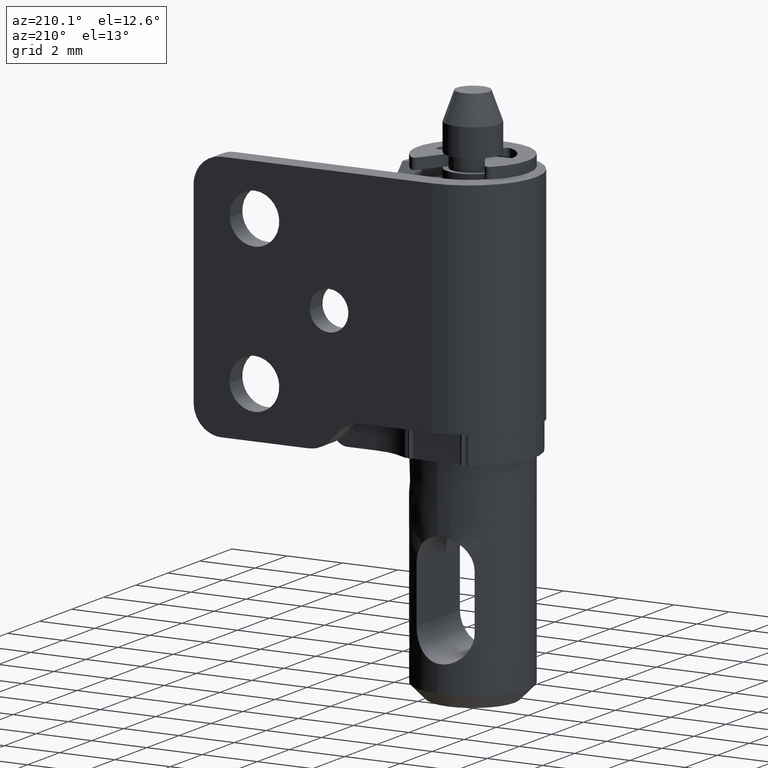
[diagram: clean part render]
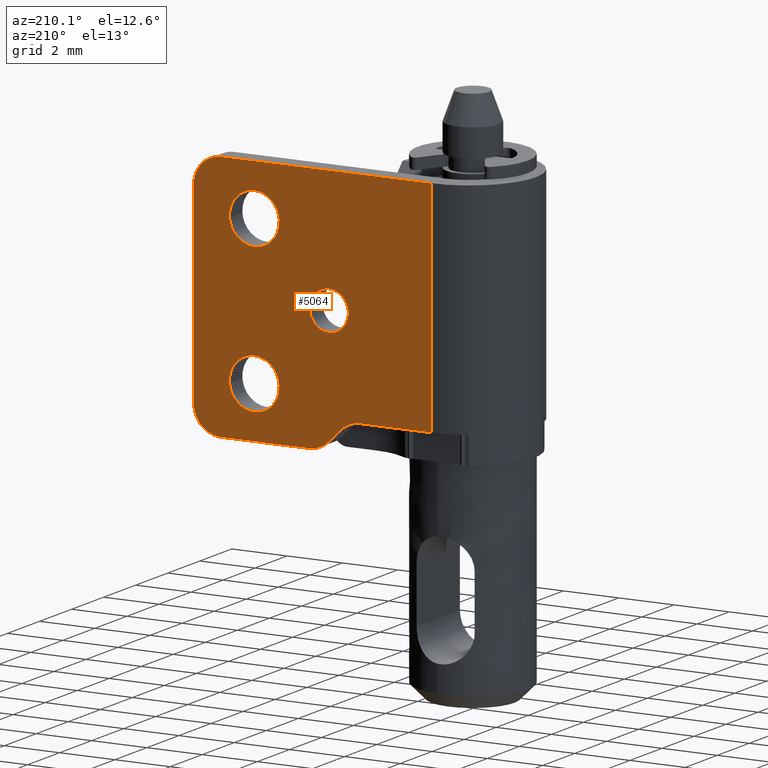
[diagram: same view with one face highlighted and labeled with its STEP entity id]
A machine part, auxiliary view. The second image highlights one B-rep face of the part: STEP entity #5064.
In plain terms, the highlighted face is a freeform B-spline surface patch.
Its self-contained STEP definition (entity closure, byte-faithful):
#3770=CARTESIAN_POINT('',(3.002157866387539,2.600000000000045,12.554921367018940));
#3771=VERTEX_POINT('',#3770);
#3777=CARTESIAN_POINT('',(3.699999999999945,2.600000000000045,13.199999999999500));
#3778=VERTEX_POINT('',#3777);
#3779=CARTESIAN_POINT('',(3.699999999999945,2.600000000000045,13.199999999999500));
#3780=CARTESIAN_POINT('',(3.052926655848458,2.600000000000046,13.199999999999498));
#3781=CARTESIAN_POINT('',(3.002157866387539,2.600000000000045,12.554921367018947));
#3789=(BOUNDED_CURVE()B_SPLINE_CURVE(2,(#3779,#3780,#3781),.UNSPECIFIED.,.F.,.U.)B_SPLINE_CURVE_WITH_KNOTS((3,3),(0.0,0.236331300630322),.UNSPECIFIED.)CURVE()GEOMETRIC_REPRESENTATION_ITEM()RATIONAL_B_SPLINE_CURVE((1.0,0.723120658608061,0.969723356166713))REPRESENTATION_ITEM(''));
#3790=EDGE_CURVE('',#3778,#3771,#3789,.T.);
#3792=CARTESIAN_POINT('',(4.397842133612350,2.600000000000045,12.445078632980049));
#3793=VERTEX_POINT('',#3792);
#3794=CARTESIAN_POINT('',(4.397842133612352,2.600000000000045,12.445078632980056));
#3795=CARTESIAN_POINT('',(4.399999999999944,2.600000000000045,12.472496925089127));
#3796=CARTESIAN_POINT('',(4.399999999999944,2.600000000000045,12.499999999999501));
#3797=CARTESIAN_POINT('',(4.399999999999945,2.600000000000045,13.199999999999498));
#3798=CARTESIAN_POINT('',(3.699999999999945,2.600000000000045,13.199999999999500));
#3806=(BOUNDED_CURVE()B_SPLINE_CURVE(2,(#3794,#3795,#3796,#3797,#3798),.UNSPECIFIED.,.F.,.U.)B_SPLINE_CURVE_WITH_KNOTS((3,2,3),(0.736331300630322,0.750000000000000,1.0),.UNSPECIFIED.)CURVE()GEOMETRIC_REPRESENTATION_ITEM()RATIONAL_B_SPLINE_CURVE((0.969723356166712,0.983986122578486,1.0,0.707106781186547,1.0))REPRESENTATION_ITEM(''));
#3807=EDGE_CURVE('',#3793,#3778,#3806,.T.);
#3883=CARTESIAN_POINT('',(3.699999999999945,2.600000000000045,11.799999999999500));
#3884=VERTEX_POINT('',#3883);
#3885=CARTESIAN_POINT('',(3.699999999999945,2.600000000000045,11.799999999999500));
#3886=CARTESIAN_POINT('',(4.347073344151431,2.600000000000044,11.799999999999502));
#3887=CARTESIAN_POINT('',(4.397842133612352,2.600000000000045,12.445078632980056));
#3895=(BOUNDED_CURVE()B_SPLINE_CURVE(2,(#3885,#3886,#3887),.UNSPECIFIED.,.F.,.U.)B_SPLINE_CURVE_WITH_KNOTS((3,3),(0.500000000000000,0.736331300630322),.UNSPECIFIED.)CURVE()GEOMETRIC_REPRESENTATION_ITEM()RATIONAL_B_SPLINE_CURVE((1.0,0.723120658608062,0.969723356166712))REPRESENTATION_ITEM(''));
#3896=EDGE_CURVE('',#3884,#3793,#3895,.T.);
#3898=CARTESIAN_POINT('',(3.002157866387540,2.600000000000045,12.554921367018949));
#3899=CARTESIAN_POINT('',(2.999999999999945,2.600000000000044,12.527503074909864));
#3900=CARTESIAN_POINT('',(2.999999999999945,2.600000000000045,12.499999999999501));
#3901=CARTESIAN_POINT('',(2.999999999999944,2.600000000000045,11.799999999999500));
#3902=CARTESIAN_POINT('',(3.699999999999945,2.600000000000045,11.799999999999500));
#3910=(BOUNDED_CURVE()B_SPLINE_CURVE(2,(#3898,#3899,#3900,#3901,#3902),.UNSPECIFIED.,.F.,.U.)B_SPLINE_CURVE_WITH_KNOTS((3,2,3),(0.236331300630322,0.250000000000000,0.500000000000000),.UNSPECIFIED.)CURVE()GEOMETRIC_REPRESENTATION_ITEM()RATIONAL_B_SPLINE_CURVE((0.969723356166713,0.983986122578486,1.0,0.707106781186547,1.0))REPRESENTATION_ITEM(''));
#3911=EDGE_CURVE('',#3771,#3884,#3910,.T.);
#3952=CARTESIAN_POINT('',(5.502774399642845,2.600000000000045,15.220613186188350));
#3953=VERTEX_POINT('',#3952);
#3959=CARTESIAN_POINT('',(6.400000000000000,2.600000000000045,16.049999999999500));
#3960=VERTEX_POINT('',#3959);
#3961=CARTESIAN_POINT('',(6.400000000000000,2.600000000000045,16.049999999999500));
#3962=CARTESIAN_POINT('',(5.568048557539039,2.600000000000046,16.049999999999496));
#3963=CARTESIAN_POINT('',(5.502774399642846,2.600000000000046,15.220613186188341));
#3971=(BOUNDED_CURVE()B_SPLINE_CURVE(2,(#3961,#3962,#3963),.UNSPECIFIED.,.F.,.U.)B_SPLINE_CURVE_WITH_KNOTS((3,3),(0.0,0.236331300626312),.UNSPECIFIED.)CURVE()GEOMETRIC_REPRESENTATION_ITEM()RATIONAL_B_SPLINE_CURVE((1.0,0.723120658612759,0.969723356158344))REPRESENTATION_ITEM(''));
#3972=EDGE_CURVE('',#3960,#3953,#3971,.T.);
#3974=CARTESIAN_POINT('',(7.297225600357156,2.600000000000045,15.079386813810650));
#3975=VERTEX_POINT('',#3974);
#3976=CARTESIAN_POINT('',(7.297225600357154,2.600000000000045,15.079386813810649));
#3977=CARTESIAN_POINT('',(7.299999999999999,2.600000000000045,15.114638903675626));
#3978=CARTESIAN_POINT('',(7.300000000000000,2.600000000000045,15.149999999999499));
#3979=CARTESIAN_POINT('',(7.299999999999999,2.600000000000045,16.049999999999496));
#3980=CARTESIAN_POINT('',(6.400000000000000,2.600000000000045,16.049999999999500));
#3988=(BOUNDED_CURVE()B_SPLINE_CURVE(2,(#3976,#3977,#3978,#3979,#3980),.UNSPECIFIED.,.F.,.U.)B_SPLINE_CURVE_WITH_KNOTS((3,2,3),(0.736331300626312,0.750000000000000,1.0),.UNSPECIFIED.)CURVE()GEOMETRIC_REPRESENTATION_ITEM()RATIONAL_B_SPLINE_CURVE((0.969723356158344,0.983986122573788,1.0,0.707106781186547,1.0))REPRESENTATION_ITEM(''));
#3989=EDGE_CURVE('',#3975,#3960,#3988,.T.);
#4065=CARTESIAN_POINT('',(6.400000000000000,2.600000000000045,14.249999999999501));
#4066=VERTEX_POINT('',#4065);
#4067=CARTESIAN_POINT('',(6.400000000000000,2.600000000000045,14.249999999999501));
#4068=CARTESIAN_POINT('',(7.231951442460961,2.600000000000045,14.249999999999499));
#4069=CARTESIAN_POINT('',(7.297225600357154,2.600000000000045,15.079386813810649));
#4077=(BOUNDED_CURVE()B_SPLINE_CURVE(2,(#4067,#4068,#4069),.UNSPECIFIED.,.F.,.U.)B_SPLINE_CURVE_WITH_KNOTS((3,3),(0.500000000000000,0.736331300626312),.UNSPECIFIED.)CURVE()GEOMETRIC_REPRESENTATION_ITEM()RATIONAL_B_SPLINE_CURVE((1.0,0.723120658612759,0.969723356158344))REPRESENTATION_ITEM(''));
#4078=EDGE_CURVE('',#4066,#3975,#4077,.T.);
#4080=CARTESIAN_POINT('',(5.502774399642846,2.600000000000045,15.220613186188347));
#4081=CARTESIAN_POINT('',(5.500000000000001,2.600000000000045,15.185361096323369));
#4082=CARTESIAN_POINT('',(5.500000000000001,2.600000000000045,15.149999999999499));
#4083=CARTESIAN_POINT('',(5.500000000000002,2.600000000000045,14.249999999999503));
#4084=CARTESIAN_POINT('',(6.400000000000000,2.600000000000045,14.249999999999501));
#4092=(BOUNDED_CURVE()B_SPLINE_CURVE(2,(#4080,#4081,#4082,#4083,#4084),.UNSPECIFIED.,.F.,.U.)B_SPLINE_CURVE_WITH_KNOTS((3,2,3),(0.236331300626312,0.250000000000000,0.500000000000000),.UNSPECIFIED.)CURVE()GEOMETRIC_REPRESENTATION_ITEM()RATIONAL_B_SPLINE_CURVE((0.969723356158344,0.983986122573788,1.0,0.707106781186547,1.0))REPRESENTATION_ITEM(''));
#4093=EDGE_CURVE('',#3953,#4066,#4092,.T.);
#4134=CARTESIAN_POINT('',(5.502774399642845,2.600000000000045,9.920613186188376));
#4135=VERTEX_POINT('',#4134);
#4141=CARTESIAN_POINT('',(6.400000000000000,2.600000000000045,10.749999999999529));
#4142=VERTEX_POINT('',#4141);
#4143=CARTESIAN_POINT('',(6.400000000000000,2.600000000000045,10.749999999999529));
#4144=CARTESIAN_POINT('',(5.568048557539038,2.600000000000045,10.749999999999531));
#4145=CARTESIAN_POINT('',(5.502774399642846,2.600000000000045,9.920613186188376));
#4153=(BOUNDED_CURVE()B_SPLINE_CURVE(2,(#4143,#4144,#4145),.UNSPECIFIED.,.F.,.U.)B_SPLINE_CURVE_WITH_KNOTS((3,3),(0.0,0.236331300626312),.UNSPECIFIED.)CURVE()GEOMETRIC_REPRESENTATION_ITEM()RATIONAL_B_SPLINE_CURVE((1.0,0.723120658612759,0.969723356158344))REPRESENTATION_ITEM(''));
#4154=EDGE_CURVE('',#4142,#4135,#4153,.T.);
#4156=CARTESIAN_POINT('',(7.297225600357155,2.600000000000045,9.779386813810685));
#4157=VERTEX_POINT('',#4156);
#4158=CARTESIAN_POINT('',(7.297225600357156,2.600000000000045,9.779386813810685));
#4159=CARTESIAN_POINT('',(7.300000000000001,2.600000000000045,9.814638903675657));
#4160=CARTESIAN_POINT('',(7.300000000000000,2.600000000000045,9.849999999999531));
#4161=CARTESIAN_POINT('',(7.299999999999999,2.600000000000045,10.749999999999531));
#4162=CARTESIAN_POINT('',(6.400000000000000,2.600000000000045,10.749999999999529));
#4170=(BOUNDED_CURVE()B_SPLINE_CURVE(2,(#4158,#4159,#4160,#4161,#4162),.UNSPECIFIED.,.F.,.U.)B_SPLINE_CURVE_WITH_KNOTS((3,2,3),(0.736331300626312,0.750000000000000,1.0),.UNSPECIFIED.)CURVE()GEOMETRIC_REPRESENTATION_ITEM()RATIONAL_B_SPLINE_CURVE((0.969723356158345,0.983986122573789,1.0,0.707106781186547,1.0))REPRESENTATION_ITEM(''));
#4171=EDGE_CURVE('',#4157,#4142,#4170,.T.);
#4247=CARTESIAN_POINT('',(6.400000000000000,2.600000000000045,8.949999999999532));
#4248=VERTEX_POINT('',#4247);
#4249=CARTESIAN_POINT('',(6.400000000000000,2.600000000000045,8.949999999999532));
#4250=CARTESIAN_POINT('',(7.231951442460961,2.600000000000045,8.949999999999532));
#4251=CARTESIAN_POINT('',(7.297225600357154,2.600000000000045,9.779386813810685));
#4259=(BOUNDED_CURVE()B_SPLINE_CURVE(2,(#4249,#4250,#4251),.UNSPECIFIED.,.F.,.U.)B_SPLINE_CURVE_WITH_KNOTS((3,3),(0.500000000000000,0.736331300626312),.UNSPECIFIED.)CURVE()GEOMETRIC_REPRESENTATION_ITEM()RATIONAL_B_SPLINE_CURVE((1.0,0.723120658612759,0.969723356158344))REPRESENTATION_ITEM(''));
#4260=EDGE_CURVE('',#4248,#4157,#4259,.T.);
#4262=CARTESIAN_POINT('',(5.502774399642846,2.600000000000045,9.920613186188376));
#4263=CARTESIAN_POINT('',(5.500000000000001,2.600000000000045,9.885361096323404));
#4264=CARTESIAN_POINT('',(5.500000000000001,2.600000000000045,9.849999999999531));
#4265=CARTESIAN_POINT('',(5.500000000000002,2.600000000000045,8.949999999999532));
#4266=CARTESIAN_POINT('',(6.400000000000000,2.600000000000045,8.949999999999532));
#4274=(BOUNDED_CURVE()B_SPLINE_CURVE(2,(#4262,#4263,#4264,#4265,#4266),.UNSPECIFIED.,.F.,.U.)B_SPLINE_CURVE_WITH_KNOTS((3,2,3),(0.236331300626312,0.250000000000000,0.500000000000000),.UNSPECIFIED.)CURVE()GEOMETRIC_REPRESENTATION_ITEM()RATIONAL_B_SPLINE_CURVE((0.969723356158344,0.983986122573788,1.0,0.707106781186547,1.0))REPRESENTATION_ITEM(''));
#4275=EDGE_CURVE('',#4135,#4248,#4274,.T.);
#4635=CARTESIAN_POINT('',(7.599999999999910,2.600000000000000,17.0));
#4636=VERTEX_POINT('',#4635);
#4637=CARTESIAN_POINT('',(8.600000000000000,2.600000000000000,16.0));
#4638=VERTEX_POINT('',#4637);
#4639=CARTESIAN_POINT('',(7.599999999999910,2.600000000000000,17.0));
#4640=CARTESIAN_POINT('',(8.599999999999909,2.600000000000001,17.000000000000004));
#4641=CARTESIAN_POINT('',(8.599999999999909,2.600000000000000,16.0));
#4649=(BOUNDED_CURVE()B_SPLINE_CURVE(2,(#4639,#4640,#4641),.UNSPECIFIED.,.F.,.U.)CURVE()GEOMETRIC_REPRESENTATION_ITEM()QUASI_UNIFORM_CURVE()RATIONAL_B_SPLINE_CURVE((1.0,0.707106781186548,1.0))REPRESENTATION_ITEM(''));
#4650=EDGE_CURVE('',#4636,#4638,#4649,.T.);
#4680=CARTESIAN_POINT('',(8.600000000000000,2.600000000000000,8.999999999999449));
#4681=VERTEX_POINT('',#4680);
#4682=CARTESIAN_POINT('',(7.599999999999910,2.600000000000000,7.999999999999499));
#4683=VERTEX_POINT('',#4682);
#4684=CARTESIAN_POINT('',(8.600000000000000,2.600000000000000,8.999999999999449));
#4685=CARTESIAN_POINT('',(8.599999999999909,2.600000000000001,7.999999999999502));
#4686=CARTESIAN_POINT('',(7.599999999999910,2.600000000000000,7.999999999999501));
#4694=(BOUNDED_CURVE()B_SPLINE_CURVE(2,(#4684,#4685,#4686),.UNSPECIFIED.,.F.,.U.)CURVE()GEOMETRIC_REPRESENTATION_ITEM()QUASI_UNIFORM_CURVE()RATIONAL_B_SPLINE_CURVE((1.0,0.707106781186548,1.0))REPRESENTATION_ITEM(''));
#4695=EDGE_CURVE('',#4681,#4683,#4694,.T.);
#4758=CARTESIAN_POINT('',(2.585786437626255,2.600000000000045,9.000000000000108));
#4759=VERTEX_POINT('',#4758);
#4765=CARTESIAN_POINT('',(3.292893218812845,2.600000000000045,8.707106781186660));
#4766=VERTEX_POINT('',#4765);
#4767=CARTESIAN_POINT('',(3.292893218812846,2.600000000000045,8.707106781186660));
#4768=CARTESIAN_POINT('',(2.999999999999393,2.600000000000045,9.000000000000108));
#4769=CARTESIAN_POINT('',(2.585786437626300,2.600000000000045,9.000000000000108));
#4777=(BOUNDED_CURVE()B_SPLINE_CURVE(2,(#4767,#4768,#4769),.UNSPECIFIED.,.F.,.U.)CURVE()GEOMETRIC_REPRESENTATION_ITEM()QUASI_UNIFORM_CURVE()RATIONAL_B_SPLINE_CURVE((1.0,0.923879532511288,1.0))REPRESENTATION_ITEM(''));
#4778=EDGE_CURVE('',#4766,#4759,#4777,.T.);
#4803=CARTESIAN_POINT('',(3.707106781186550,2.600000000000045,8.292893218812951));
#4804=VERTEX_POINT('',#4803);
#4810=CARTESIAN_POINT('',(4.414213562373099,2.600000000000000,7.999999999999499));
#4811=VERTEX_POINT('',#4810);
#4812=CARTESIAN_POINT('',(4.414213562373099,2.600000000000000,7.999999999999501));
#4813=CARTESIAN_POINT('',(4.000000000000004,2.600000000000000,7.999999999999501));
#4814=CARTESIAN_POINT('',(3.707106781186552,2.600000000000000,8.292893218812953));
#4822=(BOUNDED_CURVE()B_SPLINE_CURVE(2,(#4812,#4813,#4814),.UNSPECIFIED.,.F.,.U.)CURVE()GEOMETRIC_REPRESENTATION_ITEM()QUASI_UNIFORM_CURVE()RATIONAL_B_SPLINE_CURVE((1.0,0.923879532511287,1.0))REPRESENTATION_ITEM(''));
#4823=EDGE_CURVE('',#4811,#4804,#4822,.T.);
#4838=CARTESIAN_POINT('',(3.707106781186550,2.600000000000045,8.292893218812951));
#4839=CARTESIAN_POINT('',(3.292893218812845,2.600000000000045,8.707106781186660));
#4840=QUASI_UNIFORM_CURVE('',1,(#4838,#4839),.UNSPECIFIED.,.F.,.U.);
#4841=EDGE_CURVE('',#4804,#4766,#4840,.T.);
#4857=CARTESIAN_POINT('',(0.0,2.600000000000045,9.0));
#4858=VERTEX_POINT('',#4857);
#4896=CARTESIAN_POINT('',(2.585786437626255,2.600000000000045,9.000000000000108));
#4897=CARTESIAN_POINT('',(0.0,2.600000000000045,9.0));
#4898=QUASI_UNIFORM_CURVE('',1,(#4896,#4897),.UNSPECIFIED.,.F.,.U.);
#4899=EDGE_CURVE('',#4759,#4858,#4898,.T.);
#4914=CARTESIAN_POINT('',(-4.408583E-016,2.600000000000000,17.0));
#4915=VERTEX_POINT('',#4914);
#4916=CARTESIAN_POINT('',(-4.408583E-016,2.600000000000000,17.0));
#4917=CARTESIAN_POINT('',(7.599999999999910,2.600000000000000,17.0));
#4918=QUASI_UNIFORM_CURVE('',1,(#4916,#4917),.UNSPECIFIED.,.F.,.U.);
#4919=EDGE_CURVE('',#4915,#4636,#4918,.T.);
#4971=CARTESIAN_POINT('',(8.600000000000000,2.600000000000000,8.999999999999449));
#4972=CARTESIAN_POINT('',(8.600000000000000,2.600000000000000,16.0));
#4973=QUASI_UNIFORM_CURVE('',1,(#4971,#4972),.UNSPECIFIED.,.F.,.U.);
#4974=EDGE_CURVE('',#4681,#4638,#4973,.T.);
#4985=CARTESIAN_POINT('',(4.414213562373099,2.600000000000000,7.999999999999499));
#4986=CARTESIAN_POINT('',(7.599999999999910,2.600000000000000,7.999999999999499));
#4987=QUASI_UNIFORM_CURVE('',1,(#4985,#4986),.UNSPECIFIED.,.F.,.U.);
#4988=EDGE_CURVE('',#4811,#4683,#4987,.T.);
#5018=CARTESIAN_POINT('',(0.0,2.600000000000045,9.0));
#5019=CARTESIAN_POINT('',(-4.408583E-016,2.600000000000000,17.0));
#5020=QUASI_UNIFORM_CURVE('',1,(#5018,#5019),.UNSPECIFIED.,.F.,.U.);
#5021=EDGE_CURVE('',#4858,#4915,#5020,.T.);
#5029=CARTESIAN_POINT('',(-0.429569983331532,2.600000000000000,17.449549982556270));
#5030=CARTESIAN_POINT('',(-0.429569983331532,2.600000000000000,7.550449776044409));
#5031=CARTESIAN_POINT('',(9.029570214001508,2.600000000000000,17.449549982556270));
#5032=CARTESIAN_POINT('',(9.029570214001508,2.600000000000000,7.550449776044409));
#5033=B_SPLINE_SURFACE_WITH_KNOTS('',1,1,((#5029,#5031),(#5030,#5032)),.UNSPECIFIED.,.F.,.F.,.U.,(2,2),(2,2),(0.0,9.899100206511864),(0.0,9.459140197333040),.UNSPECIFIED.);
#5034=ORIENTED_EDGE('',*,*,#4974,.F.);
#5035=ORIENTED_EDGE('',*,*,#4695,.T.);
#5036=ORIENTED_EDGE('',*,*,#4988,.F.);
#5037=ORIENTED_EDGE('',*,*,#4823,.T.);
#5038=ORIENTED_EDGE('',*,*,#4841,.T.);
#5039=ORIENTED_EDGE('',*,*,#4778,.T.);
#5040=ORIENTED_EDGE('',*,*,#4899,.T.);
#5041=ORIENTED_EDGE('',*,*,#5021,.T.);
#5042=ORIENTED_EDGE('',*,*,#4919,.T.);
#5043=ORIENTED_EDGE('',*,*,#4650,.T.);
#5044=EDGE_LOOP('',(#5034,#5035,#5036,#5037,#5038,#5039,#5040,#5041,#5042,#5043));
#5045=FACE_OUTER_BOUND('',#5044,.T.);
#5046=ORIENTED_EDGE('',*,*,#4260,.T.);
#5047=ORIENTED_EDGE('',*,*,#4171,.T.);
#5048=ORIENTED_EDGE('',*,*,#4154,.T.);
#5049=ORIENTED_EDGE('',*,*,#4275,.T.);
#5050=EDGE_LOOP('',(#5046,#5047,#5048,#5049));
#5051=FACE_BOUND('',#5050,.T.);
#5052=ORIENTED_EDGE('',*,*,#4078,.T.);
#5053=ORIENTED_EDGE('',*,*,#3989,.T.);
#5054=ORIENTED_EDGE('',*,*,#3972,.T.);
#5055=ORIENTED_EDGE('',*,*,#4093,.T.);
#5056=EDGE_LOOP('',(#5052,#5053,#5054,#5055));
#5057=FACE_BOUND('',#5056,.T.);
#5058=ORIENTED_EDGE('',*,*,#3896,.T.);
#5059=ORIENTED_EDGE('',*,*,#3807,.T.);
#5060=ORIENTED_EDGE('',*,*,#3790,.T.);
#5061=ORIENTED_EDGE('',*,*,#3911,.T.);
#5062=EDGE_LOOP('',(#5058,#5059,#5060,#5061));
#5063=FACE_BOUND('',#5062,.T.);
#5064=ADVANCED_FACE('',(#5045,#5051,#5057,#5063),#5033,.F.);